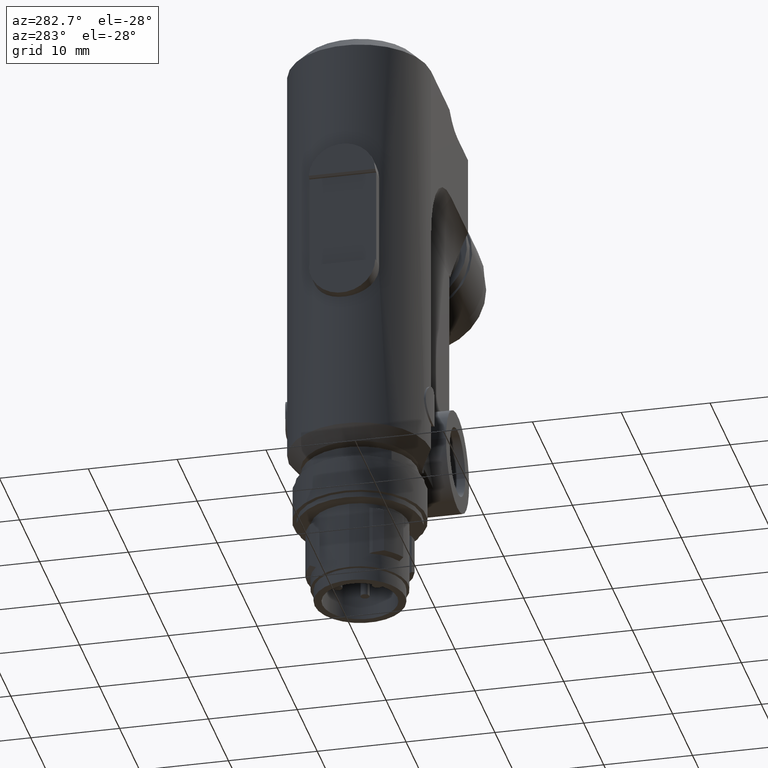
[diagram: clean part render]
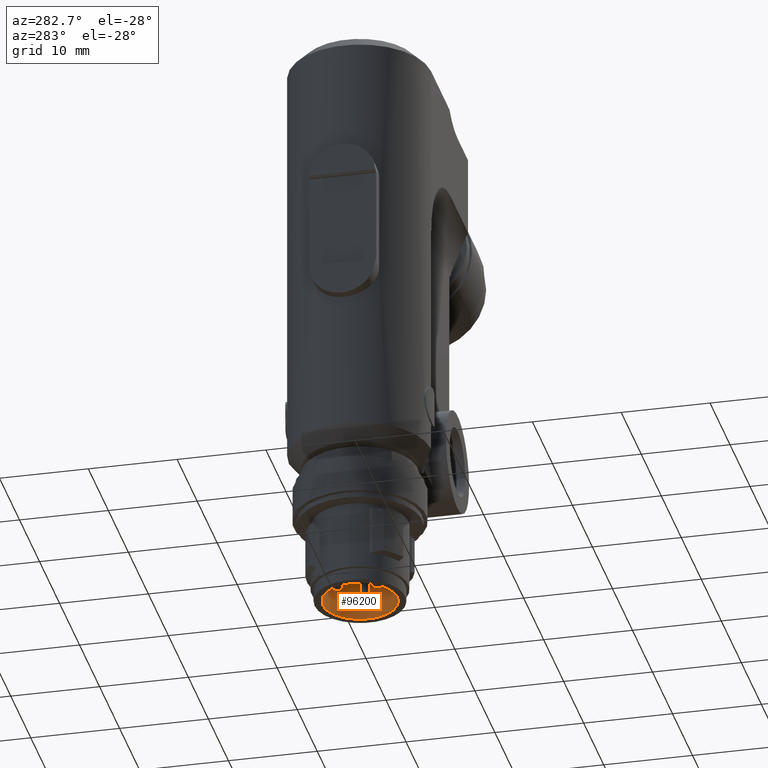
[diagram: same view with one face highlighted and labeled with its STEP entity id]
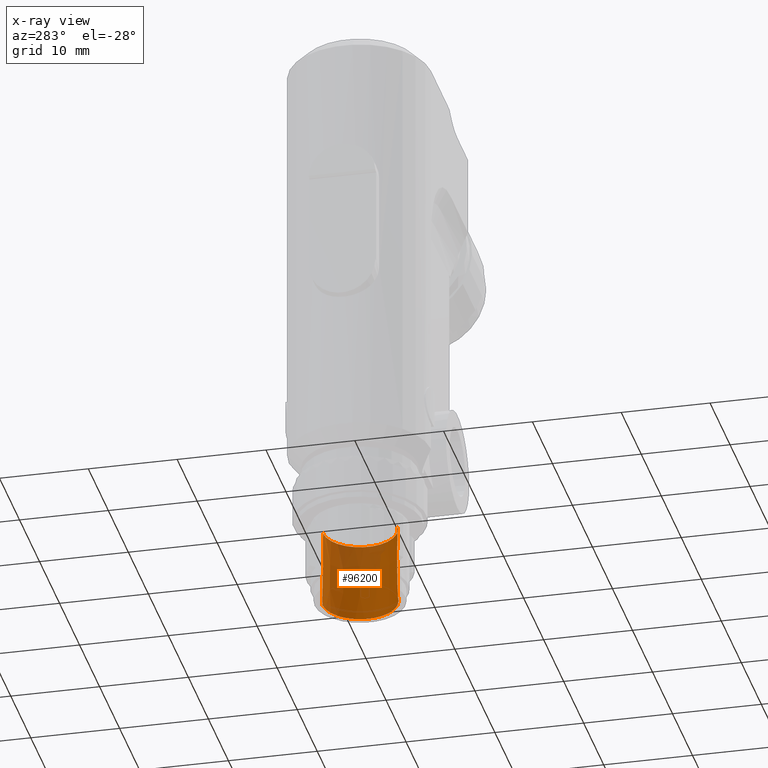
[diagram: x-ray of the same camera — body ghosted, the highlighted face saturated]
A machine part, auxiliary view. The second image highlights one B-rep face of the part: STEP entity #96200.
The next image is the same camera in x-ray: the body ghosted, the highlighted face saturated — about 26% of this face is hidden behind the body in this view.
In plain terms, the highlighted conical surface has half-angle 0.5 deg.
Its self-contained STEP definition (entity closure, byte-faithful):
#48920=CARTESIAN_POINT('',(-7.8159700933611E-14,-1.86517468137026E-14,
-16.5000000000002));
#48930=DIRECTION('',(1.22124532708767E-15,4.78783679369599E-16,-1.));
#48940=DIRECTION('',(-0.99999639415828,-0.00268545535036106,
-1.16573417585641E-15));
#48950=AXIS2_PLACEMENT_3D('',#48920,#48930,#48940);
#48960=CIRCLE('',#48950,4.22766912333775);
#48970=CARTESIAN_POINT('',(-0.445973989507202,4.20408056739002,
-16.5000000000002));
#48980=VERTEX_POINT('',#48970);
#48990=CARTESIAN_POINT('',(4.22765387903198,0.0113532166668048,
-16.5000000000002));
#49000=VERTEX_POINT('',#48990);
#49010=EDGE_CURVE('',#48980,#49000,#48960,.T.);
#49030=CARTESIAN_POINT('',(-4.22765387903213,-0.0113532166668432,
-16.5000000000002));
#49040=VERTEX_POINT('',#49030);
#49070=EDGE_CURVE('',#49040,#48980,#48960,.T.);
#49940=CARTESIAN_POINT('',(-8.5265128291212E-14,-2.44249065417534E-14,
-7.60000000000016));
#49950=DIRECTION('',(1.22124532708767E-15,4.78783679369599E-16,-1.));
#49960=DIRECTION('',(-0.99999639415828,-0.00268545535036106,
-1.16573417585641E-15));
#49970=AXIS2_PLACEMENT_3D('',#49940,#49950,#49960);
#49980=CIRCLE('',#49970,4.15);
#49990=CARTESIAN_POINT('',(-4.14998503575695,-0.0111446397040229,
-7.60000000000017));
#50000=VERTEX_POINT('',#49990);
#50030=CARTESIAN_POINT('',(-4.14998503575695,-0.0111446397040229,
-7.60000000000017));
#50040=DIRECTION('',(-0.00872650403186704,-2.34347214436667E-5,
-0.999961923064171));
#50050=VECTOR('',#50040,475.561005942541);
#50060=LINE('',#50030,#50050);
#50070=EDGE_CURVE('',#50000,#49040,#50060,.T.);
#50100=CARTESIAN_POINT('',(4.14998503575678,0.0111446397039746,
-7.60000000000016));
#50110=DIRECTION('',(0.00872650403186928,2.34347214447827E-5,
-0.999961923064171));
#50120=VECTOR('',#50110,475.561005942541);
#50130=LINE('',#50100,#50120);
#50140=CARTESIAN_POINT('',(4.14998503575678,0.0111446397039746,
-7.60000000000016));
#50150=VERTEX_POINT('',#50140);
#50160=EDGE_CURVE('',#50150,#49000,#50130,.T.);
#50950=EDGE_CURVE('',#50000,#50150,#49980,.T.);
#96080=CARTESIAN_POINT('',(-8.5265128291212E-14,-2.44249065417534E-14,
-7.60000000000016));
#96090=DIRECTION('',(1.12062876771008E-15,5.57512811935765E-16,-1.));
#96100=DIRECTION('',(-0.99999639415828,-0.00268545535036108,
-1.11022302462516E-15));
#96110=AXIS2_PLACEMENT_3D('',#96080,#96090,#96100);
#96120=CONICAL_SURFACE('',#96110,4.15,0.00872664625997165);
#96130=ORIENTED_EDGE('',*,*,#50070,.T.);
#96140=ORIENTED_EDGE('',*,*,#50950,.F.);
#96150=ORIENTED_EDGE('',*,*,#50160,.F.);
#96160=ORIENTED_EDGE('',*,*,#49010,.T.);
#96170=ORIENTED_EDGE('',*,*,#49070,.T.);
#96180=EDGE_LOOP('',(#96170,#96160,#96150,#96140,#96130));
#96190=FACE_OUTER_BOUND('',#96180,.T.);
#96200=ADVANCED_FACE('',(#96190),#96120,.F.);